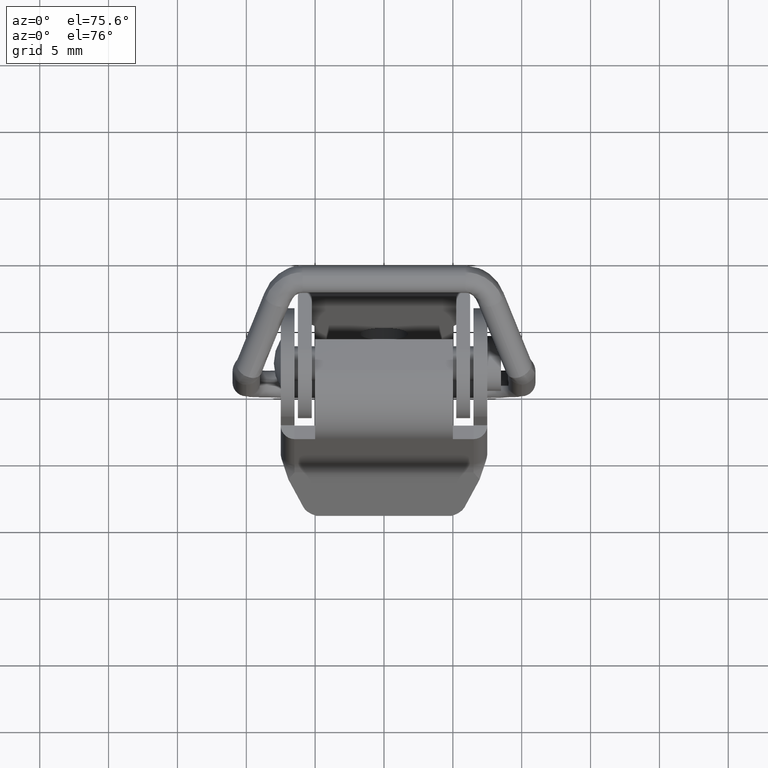
[diagram: clean part render]
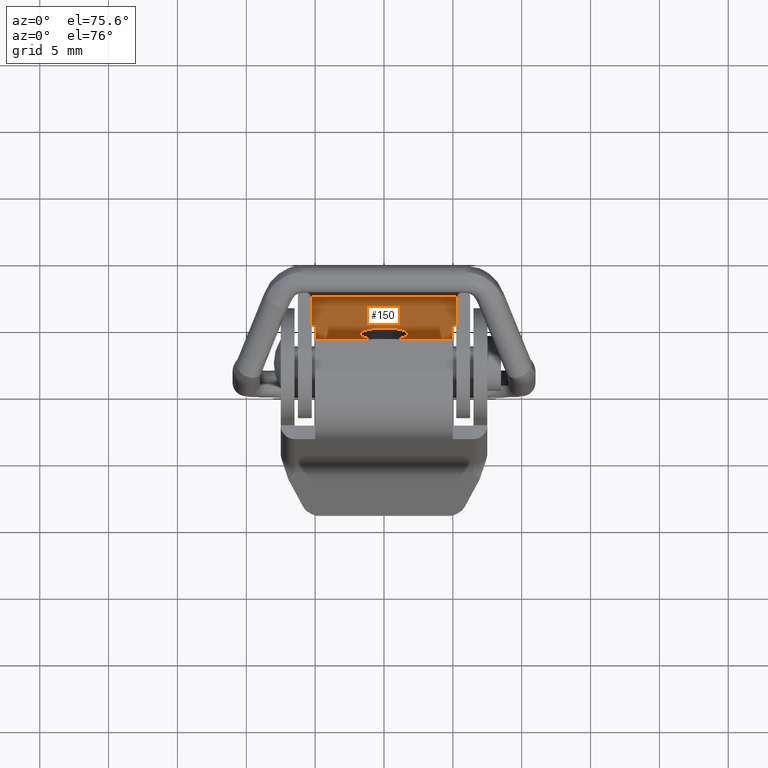
[diagram: same view with one face highlighted and labeled with its STEP entity id]
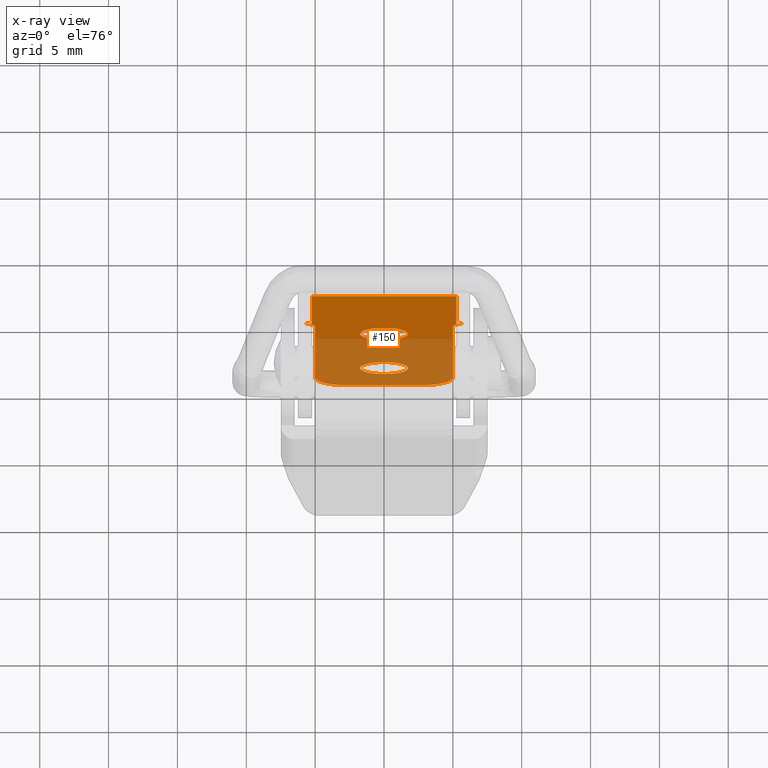
[diagram: x-ray of the same camera — body ghosted, the highlighted face saturated]
A machine part, auxiliary view. The second image highlights one B-rep face of the part: STEP entity #150.
The next image is the same camera in x-ray: the body ghosted, the highlighted face saturated — about 50% of this face is hidden behind the body in this view.
In plain terms, the highlighted planar face has unit normal (0, 1, 0).
Its self-contained STEP definition (entity closure, byte-faithful):
#150=ADVANCED_FACE('',(#267,#268,#269),#266,.F.);
#266=PLANE('',#1350);
#267=FACE_OUTER_BOUND('',#1351,.T.);
#268=FACE_BOUND('',#1352,.T.);
#269=FACE_BOUND('',#1353,.T.);
#1347=CARTESIAN_POINT('',(-7.20000000000E+00,-1.00000000000E+00,-2.86000000000E+01));
#1348=DIRECTION('',(-0.00000000000E+00,1.00000000000E+00,0.00000000000E+00));
#1349=DIRECTION('',(0.00000000000E+00,0.00000000000E+00,1.00000000000E+00));
#1350=AXIS2_PLACEMENT_3D('',#1347,#1348,#1349);
#1351=EDGE_LOOP('',(#3282,#3283,#3284,#3285,#3286,#3287,#3288,#3289,#3290,#3291,#3292,#3293));
#1352=EDGE_LOOP('',(#3294,#3295));
#1353=EDGE_LOOP('',(#3296,#3297));
#3282=ORIENTED_EDGE('',*,*,#3858,.F.);
#3283=ORIENTED_EDGE('',*,*,#3859,.F.);
#3284=ORIENTED_EDGE('',*,*,#3860,.T.);
#3285=ORIENTED_EDGE('',*,*,#3861,.T.);
#3286=ORIENTED_EDGE('',*,*,#3862,.T.);
#3287=ORIENTED_EDGE('',*,*,#3863,.F.);
#3288=ORIENTED_EDGE('',*,*,#3864,.T.);
#3289=ORIENTED_EDGE('',*,*,#3865,.T.);
#3290=ORIENTED_EDGE('',*,*,#3866,.T.);
#3291=ORIENTED_EDGE('',*,*,#3867,.T.);
#3292=ORIENTED_EDGE('',*,*,#3868,.T.);
#3293=ORIENTED_EDGE('',*,*,#3869,.F.);
#3294=ORIENTED_EDGE('',*,*,#3870,.F.);
#3295=ORIENTED_EDGE('',*,*,#3871,.F.);
#3296=ORIENTED_EDGE('',*,*,#3872,.F.);
#3297=ORIENTED_EDGE('',*,*,#3873,.F.);
#3858=EDGE_CURVE('',#4176,#4177,#4178,.T.);
#3859=EDGE_CURVE('',#4184,#4176,#4185,.T.);
#3860=EDGE_CURVE('',#4184,#4191,#4192,.T.);
#3861=EDGE_CURVE('',#4191,#4198,#4199,.T.);
#3862=EDGE_CURVE('',#4198,#4205,#4206,.T.);
#3863=EDGE_CURVE('',#4212,#4205,#4213,.T.);
#3864=EDGE_CURVE('',#4212,#4219,#4220,.T.);
#3865=EDGE_CURVE('',#4219,#4226,#4227,.T.);
#3866=EDGE_CURVE('',#4226,#4233,#4234,.T.);
#3867=EDGE_CURVE('',#4233,#4240,#4241,.T.);
#3868=EDGE_CURVE('',#4240,#4247,#4248,.T.);
#3869=EDGE_CURVE('',#4177,#4247,#4254,.T.);
#3870=EDGE_CURVE('',#4260,#4261,#4262,.T.);
#3871=EDGE_CURVE('',#4261,#4260,#4268,.T.);
#3872=EDGE_CURVE('',#4274,#4275,#4276,.T.);
#3873=EDGE_CURVE('',#4275,#4274,#4282,.T.);
#4176=VERTEX_POINT('',#6083);
#4177=VERTEX_POINT('',#6084);
#4178=LINE('',#6085,#6086);
#4184=VERTEX_POINT('',#6088);
#4185=LINE('',#6089,#6090);
#4191=VERTEX_POINT('',#6092);
#4192=LINE('',#6093,#6094);
#4198=VERTEX_POINT('',#6096);
#4199=LINE('',#6097,#6098);
#4205=VERTEX_POINT('',#6100);
#4206=LINE('',#6101,#6102);
#4212=VERTEX_POINT('',#6104);
#4213=CIRCLE('',#6108,1.00000000000E+00);
#4219=VERTEX_POINT('',#6109);
#4220=LINE('',#6110,#6111);
#4226=VERTEX_POINT('',#6113);
#4227=CIRCLE('',#6117,2.25000000000E+00);
#4233=VERTEX_POINT('',#6118);
#4234=LINE('',#6119,#6120);
#4240=VERTEX_POINT('',#6122);
#4241=CIRCLE('',#6126,2.25000000000E+00);
#4247=VERTEX_POINT('',#6127);
#4248=LINE('',#6128,#6129);
#4254=CIRCLE('',#6134,1.00000000000E+00);
#4260=VERTEX_POINT('',#6135);
#4261=VERTEX_POINT('',#6136);
#4262=CIRCLE('',#6140,1.75000000000E+00);
#4268=CIRCLE('',#6144,1.75000000000E+00);
#4274=VERTEX_POINT('',#6145);
#4275=VERTEX_POINT('',#6146);
#4276=CIRCLE('',#6150,1.75000000000E+00);
#4282=CIRCLE('',#6154,1.75000000000E+00);
#6083=CARTESIAN_POINT('',(5.25000000000E+00,-1.00000000000E+00,-8.00000000000E+00));
#6084=CARTESIAN_POINT('',(6.00000000000E+00,-1.00000000000E+00,-8.00000000000E+00));
#6085=CARTESIAN_POINT('',(5.25000000000E+00,-1.00000000000E+00,-8.00000000000E+00));
#6086=VECTOR('',#6087,7.50000000000E-01);
#6087=DIRECTION('',(1.00000000000E+00,0.00000000000E+00,0.00000000000E+00));
#6088=CARTESIAN_POINT('',(5.25000000000E+00,-1.00000000000E+00,0.00000000000E+00));
#6089=CARTESIAN_POINT('',(5.25000000000E+00,-1.00000000000E+00,0.00000000000E+00));
#6090=VECTOR('',#6091,8.00000000000E+00);
#6091=DIRECTION('',(0.00000000000E+00,0.00000000000E+00,-1.00000000000E+00));
#6092=CARTESIAN_POINT('',(-5.25000000000E+00,-1.00000000000E+00,0.00000000000E+00));
#6093=CARTESIAN_POINT('',(5.25000000000E+00,-1.00000000000E+00,0.00000000000E+00));
#6094=VECTOR('',#6095,1.05000000000E+01);
#6095=DIRECTION('',(-1.00000000000E+00,0.00000000000E+00,0.00000000000E+00));
#6096=CARTESIAN_POINT('',(-5.25000000000E+00,-1.00000000000E+00,-8.00000000000E+00));
#6097=CARTESIAN_POINT('',(-5.25000000000E+00,-1.00000000000E+00,0.00000000000E+00));
#6098=VECTOR('',#6099,8.00000000000E+00);
#6099=DIRECTION('',(0.00000000000E+00,0.00000000000E+00,-1.00000000000E+00));
#6100=CARTESIAN_POINT('',(-6.00000000000E+00,-1.00000000000E+00,-8.00000000000E+00));
#6101=CARTESIAN_POINT('',(-5.25000000000E+00,-1.00000000000E+00,-8.00000000000E+00));
#6102=VECTOR('',#6103,7.50000000000E-01);
#6103=DIRECTION('',(-1.00000000000E+00,0.00000000000E+00,0.00000000000E+00));
#6104=CARTESIAN_POINT('',(-5.00000000000E+00,-1.00000000000E+00,-9.00000000000E+00));
#6105=CARTESIAN_POINT('',(-6.00000000000E+00,-1.00000000000E+00,-9.00000000000E+00));
#6106=DIRECTION('',(0.00000000000E+00,-1.00000000000E+00,0.00000000000E+00));
#6107=DIRECTION('',(-0.00000000000E+00,-0.00000000000E+00,-1.00000000000E+00));
#6108=AXIS2_PLACEMENT_3D('',#6105,#6106,#6107);
#6109=CARTESIAN_POINT('',(-5.00000000000E+00,-1.00000000000E+00,-2.37500000000E+01));
#6110=CARTESIAN_POINT('',(-5.00000000000E+00,-1.00000000000E+00,-9.00000000000E+00));
#6111=VECTOR('',#6112,1.47500000000E+01);
#6112=DIRECTION('',(0.00000000000E+00,0.00000000000E+00,-1.00000000000E+00));
#6113=CARTESIAN_POINT('',(-2.75000000000E+00,-1.00000000000E+00,-2.60000000000E+01));
#6114=CARTESIAN_POINT('',(-2.75000000000E+00,-1.00000000000E+00,-2.37500000000E+01));
#6115=DIRECTION('',(0.00000000000E+00,-1.00000000000E+00,0.00000000000E+00));
#6116=DIRECTION('',(-0.00000000000E+00,-0.00000000000E+00,-1.00000000000E+00));
#6117=AXIS2_PLACEMENT_3D('',#6114,#6115,#6116);
#6118=CARTESIAN_POINT('',(2.75000000000E+00,-1.00000000000E+00,-2.60000000000E+01));
#6119=CARTESIAN_POINT('',(-2.75000000000E+00,-1.00000000000E+00,-2.60000000000E+01));
#6120=VECTOR('',#6121,5.50000000000E+00);
#6121=DIRECTION('',(1.00000000000E+00,0.00000000000E+00,0.00000000000E+00));
#6122=CARTESIAN_POINT('',(5.00000000000E+00,-1.00000000000E+00,-2.37500000000E+01));
#6123=CARTESIAN_POINT('',(2.75000000000E+00,-1.00000000000E+00,-2.37500000000E+01));
#6124=DIRECTION('',(0.00000000000E+00,-1.00000000000E+00,0.00000000000E+00));
#6125=DIRECTION('',(-0.00000000000E+00,-0.00000000000E+00,-1.00000000000E+00));
#6126=AXIS2_PLACEMENT_3D('',#6123,#6124,#6125);
#6127=CARTESIAN_POINT('',(5.00000000000E+00,-1.00000000000E+00,-9.00000000000E+00));
#6128=CARTESIAN_POINT('',(5.00000000000E+00,-1.00000000000E+00,-2.37500000000E+01));
#6129=VECTOR('',#6130,1.47500000000E+01);
#6130=DIRECTION('',(0.00000000000E+00,0.00000000000E+00,1.00000000000E+00));
#6131=CARTESIAN_POINT('',(6.00000000000E+00,-1.00000000000E+00,-9.00000000000E+00));
#6132=DIRECTION('',(0.00000000000E+00,-1.00000000000E+00,0.00000000000E+00));
#6133=DIRECTION('',(-0.00000000000E+00,-0.00000000000E+00,-1.00000000000E+00));
#6134=AXIS2_PLACEMENT_3D('',#6131,#6132,#6133);
#6135=CARTESIAN_POINT('',(2.22044604925E-16,-1.00000000000E+00,-1.27500000000E+01));
#6136=CARTESIAN_POINT('',(0.00000000000E+00,-1.00000000000E+00,-9.25000000000E+00));
#6137=CARTESIAN_POINT('',(0.00000000000E+00,-1.00000000000E+00,-1.10000000000E+01));
#6138=DIRECTION('',(0.00000000000E+00,-1.00000000000E+00,0.00000000000E+00));
#6139=DIRECTION('',(-1.22460635382E-16,0.00000000000E+00,1.00000000000E+00));
#6140=AXIS2_PLACEMENT_3D('',#6137,#6138,#6139);
#6141=CARTESIAN_POINT('',(0.00000000000E+00,-1.00000000000E+00,-1.10000000000E+01));
#6142=DIRECTION('',(0.00000000000E+00,-1.00000000000E+00,0.00000000000E+00));
#6143=DIRECTION('',(-1.22460635382E-16,0.00000000000E+00,1.00000000000E+00));
#6144=AXIS2_PLACEMENT_3D('',#6141,#6142,#6143);
#6145=CARTESIAN_POINT('',(2.22044604925E-16,-1.00000000000E+00,-2.27500000000E+01));
#6146=CARTESIAN_POINT('',(0.00000000000E+00,-1.00000000000E+00,-1.92500000000E+01));
#6147=CARTESIAN_POINT('',(0.00000000000E+00,-1.00000000000E+00,-2.10000000000E+01));
#6148=DIRECTION('',(0.00000000000E+00,-1.00000000000E+00,0.00000000000E+00));
#6149=DIRECTION('',(-1.22460635382E-16,0.00000000000E+00,1.00000000000E+00));
#6150=AXIS2_PLACEMENT_3D('',#6147,#6148,#6149);
#6151=CARTESIAN_POINT('',(0.00000000000E+00,-1.00000000000E+00,-2.10000000000E+01));
#6152=DIRECTION('',(0.00000000000E+00,-1.00000000000E+00,0.00000000000E+00));
#6153=DIRECTION('',(-1.22460635382E-16,0.00000000000E+00,1.00000000000E+00));
#6154=AXIS2_PLACEMENT_3D('',#6151,#6152,#6153);